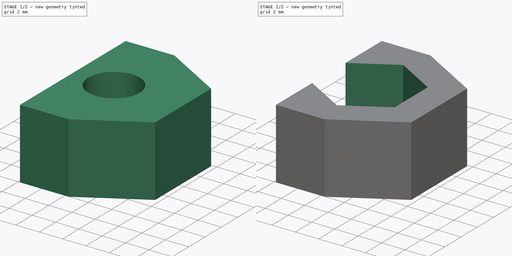
[diagram: build sequence overview — one tinted view per stage of 2, left to right]
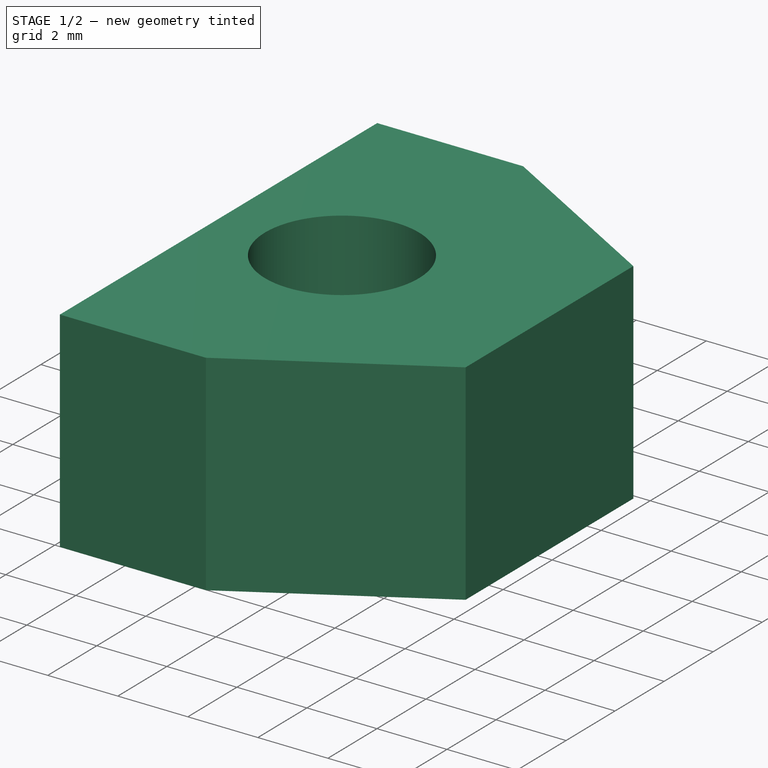
[diagram: stage 1 of 2 — iso view after this stage's code; geometry added in this stage tinted green]
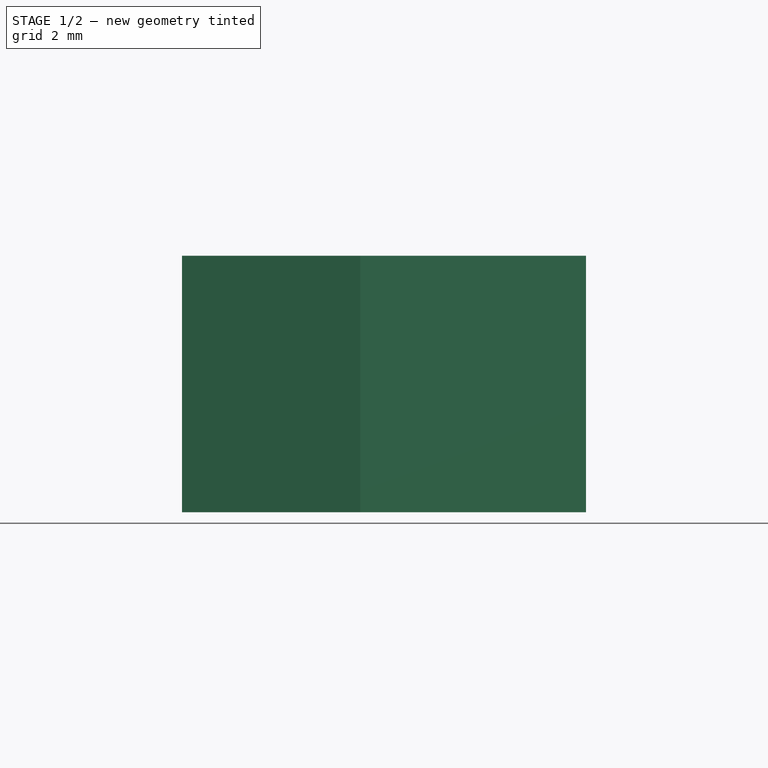
[diagram: stage 1 of 2 — front view after this stage's code; geometry added in this stage tinted green]
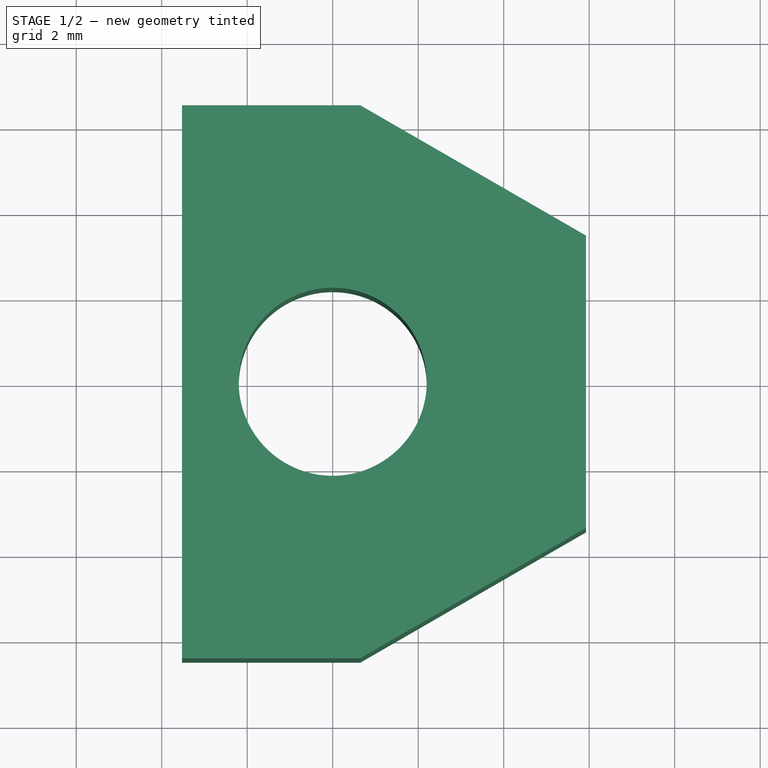
[diagram: stage 1 of 2 — top view after this stage's code; geometry added in this stage tinted green]
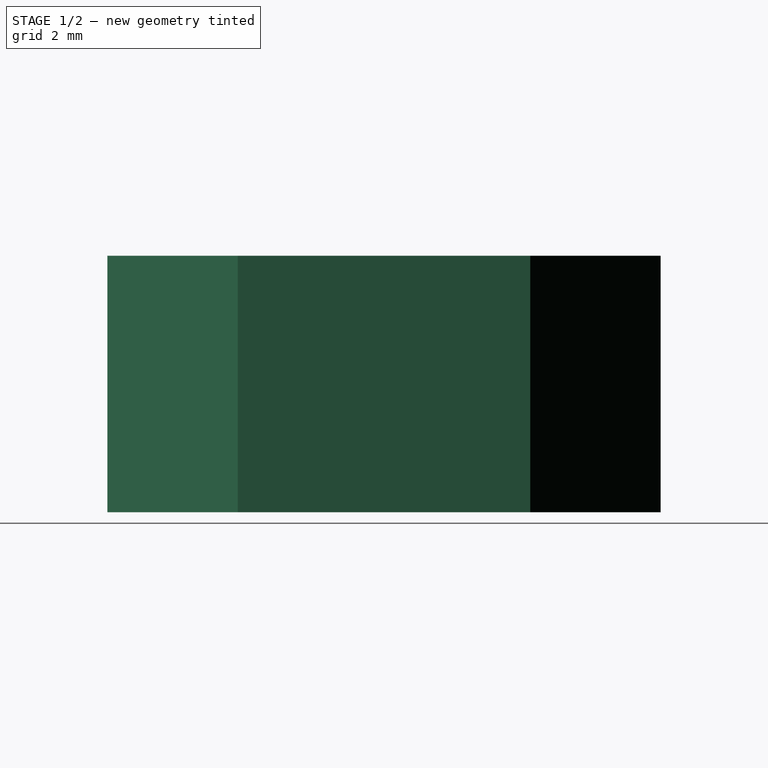
[diagram: stage 1 of 2 — right view after this stage's code; geometry added in this stage tinted green]
FCSTD DOCUMENT  (FreeCAD 0.15R4671 (Git))
Label: Halter Gleitlager Z - Verschraubung
License: All rights reserved
LicenseURL: http://de.wikipedia.org/wiki/Alle_Rechte_vorbehalten
objects: Sketcher::SketchObject×3, PartDesign::Pocket×2, PartDesign::Pad×1
note: 9 computed .brp shape members not serialized (recipe doc carries the construction recipe); baked Part::Feature solids carry a one-line shape summary decoded from their .brp

FEATURE [Sketcher::SketchObject] Sketch
  sketch-geometry (16):
    g0: LineSegment [constr] StartX=0 StartY=-4.07032 StartZ=0 EndX=3.525 EndY=-2.03516 EndZ=0
    g1: LineSegment [constr] StartX=3.525 StartY=-2.03516 StartZ=0 EndX=3.525 EndY=2.03516 EndZ=0
    g2: LineSegment [constr] StartX=3.525 StartY=2.03516 StartZ=0 EndX=0 EndY=4.07032 EndZ=0
    g3: LineSegment [constr] StartX=0 StartY=4.07032 StartZ=0 EndX=-3.525 EndY=2.03516 EndZ=0
    g4: LineSegment [constr] StartX=-3.525 StartY=2.03516 StartZ=0 EndX=-3.525 EndY=-2.03516 EndZ=0
    g5: LineSegment [constr] StartX=-3.525 StartY=-2.03516 StartZ=0 EndX=0 EndY=-4.07032 EndZ=0
    g6: Circle [constr] CenterX=0 CenterY=0 CenterZ=0 NormalX=0 NormalY=0 NormalZ=1 Radius=4.07032
    g7: LineSegment StartX=-3.525 StartY=6.47032 StartZ=0 EndX=-3.525 EndY=-6.47032 EndZ=0
    g8: LineSegment StartX=-3.525 StartY=-6.47032 StartZ=0 EndX=0.643078 EndY=-6.47032 EndZ=0
    g9: LineSegment StartX=0.643078 StartY=-6.47032 StartZ=0 EndX=5.925 EndY=-3.4208 EndZ=0
    g10: LineSegment StartX=5.925 StartY=-3.4208 StartZ=0 EndX=5.925 EndY=3.4208 EndZ=0
    g11: LineSegment StartX=5.925 StartY=3.4208 StartZ=0 EndX=0.643078 EndY=6.47032 EndZ=0
    g12: LineSegment StartX=0.643078 StartY=6.47032 StartZ=0 EndX=-3.525 EndY=6.47032 EndZ=0
    g13: LineSegment [constr] StartX=3.525 StartY=2.03516 StartZ=0 EndX=4.725 EndY=4.11362 EndZ=0
    g14: LineSegment [constr] StartX=3.525 StartY=2.03516 StartZ=0 EndX=5.925 EndY=2.03516 EndZ=0
    g15: LineSegment [constr] StartX=0 StartY=6.47032 StartZ=0 EndX=0 EndY=4.07032 EndZ=0
  constraints (42):
    c: Coincident(g0,g1)
    c: Coincident(g1,g2)
    c: Coincident(g2,g3)
    c: Coincident(g3,g4)
    c: Coincident(g4,g5)
    c: Coincident(g5,g0)
    c: Equal(g0, g1-g5) x5
    c: PointOnObject(g0,g6)
    c: PointOnObject(g1,g6)
    c: PointOnObject(g2,g6)
    c: PointOnObject(g3,g6)
    c: PointOnObject(g4,g6)
    c: PointOnObject(g5,g6)
    c: Vertical(g4)
    c: Distance(g0,g4) = 7.05
    c: Coincident(g-1,g6)
    c: Vertical(g7)
    c: Coincident(g7,g8)
    c: Horizontal(g8)
    c: Coincident(g8,g9)
    c: Coincident(g9,g10)
    c: Vertical(g10)
    c: Coincident(g10,g11)
    c: Coincident(g11,g12)
    c: Horizontal(g12)
    c: Coincident(g7,g12)
    c: Parallel(g2,g11)
    c: Parallel(g0,g9)
    c: Symmetric(g9,g10,g-1)
    c: Symmetric(g7,g7,g-1)
    c: Coincident(g13,g1)
    c: PointOnObject(g13,g11)
    c: Perpendicular(g13,g2)
    c: Coincident(g14,g1)
    c: PointOnObject(g14,g10)
    c: Horizontal(g14)
    c: Equal(g14,g13)
    c: DistanceX(g14) = 2.4
    c: Vertical(g15)
    c: Coincident(g15,g2)
    c: PointOnObject(g15,g12)
    c: PointOnObject(g3,g7)
FEATURE [PartDesign::Pad] Pad
  Length = 6
  Length2 = 100
  Sketch = -> Sketch
  Type = 0
FEATURE [Sketcher::SketchObject] Sketch001
  Placement = pos=(0,0,6) rot=(0,0,1;0rad)
  Support = -> Pad [Face8]
  sketch-geometry (1):
    g0: Circle CenterX=0 CenterY=0 CenterZ=0 NormalX=0 NormalY=0 NormalZ=1 Radius=2.2
  constraints (2):
    c: Coincident(g0,g-1)
    c: Radius(g0) = 2.2
FEATURE [PartDesign::Pocket] Pocket
  Length = 5
  Sketch = -> Sketch001
  Type = 1
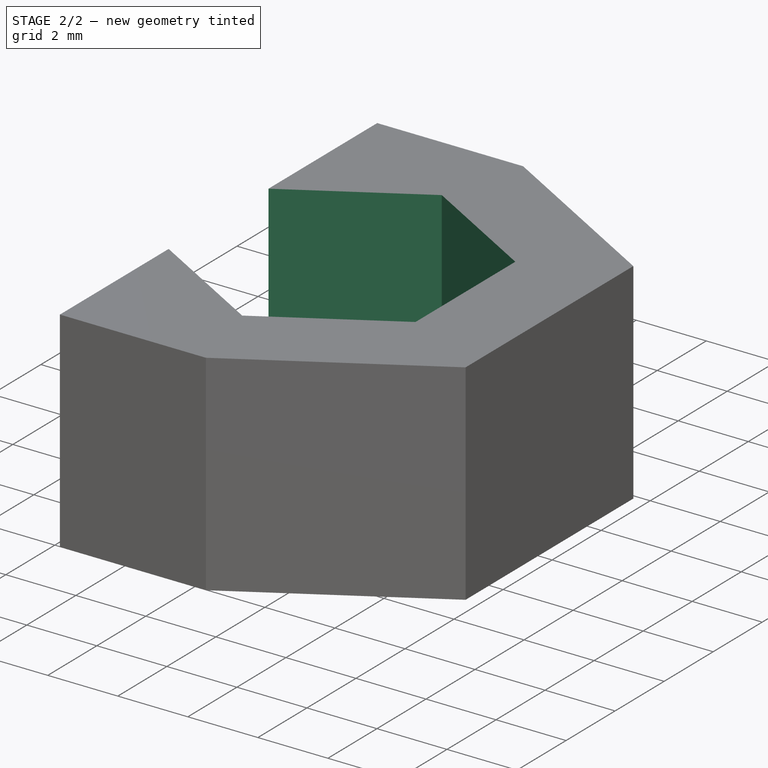
[diagram: stage 2 of 2 — iso view after this stage's code; geometry added in this stage tinted green]
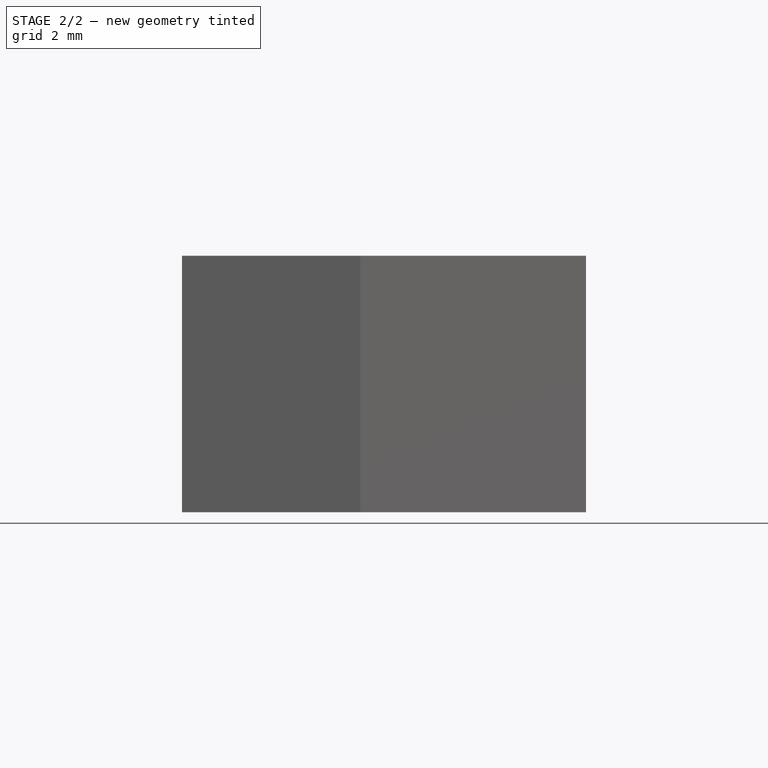
[diagram: stage 2 of 2 — front view after this stage's code; geometry added in this stage tinted green]
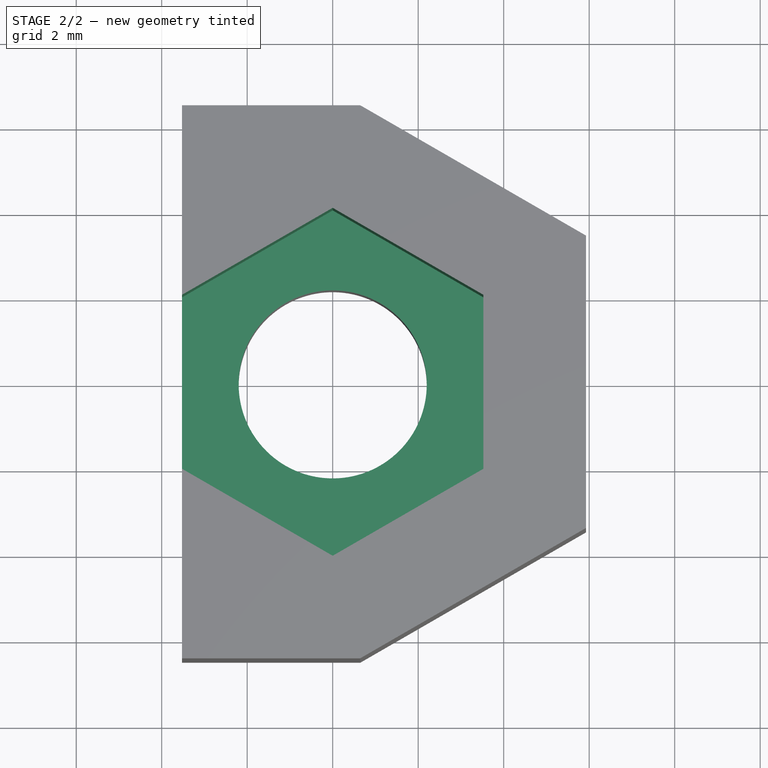
[diagram: stage 2 of 2 — top view after this stage's code; geometry added in this stage tinted green]
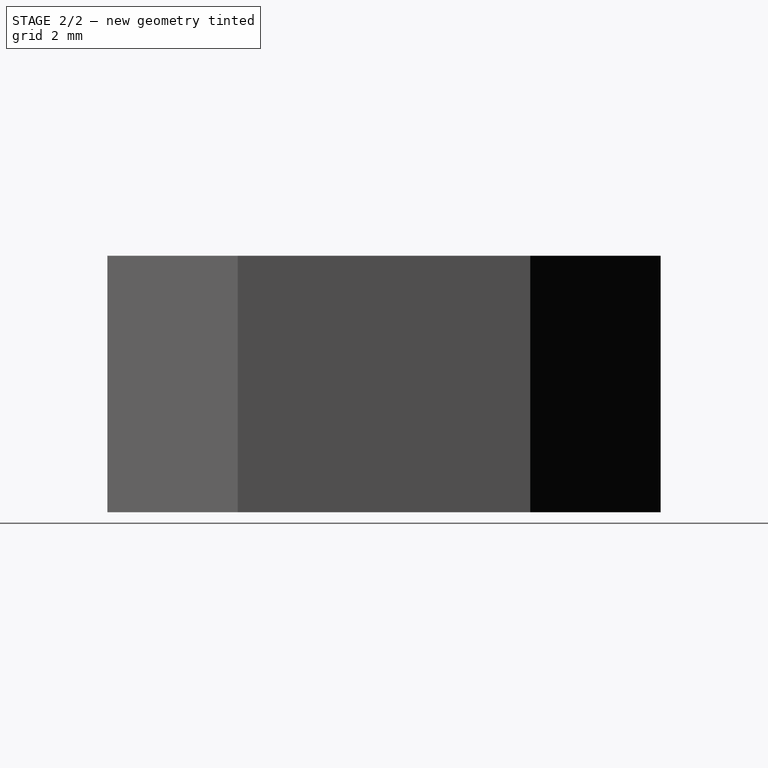
[diagram: stage 2 of 2 — right view after this stage's code; geometry added in this stage tinted green]
FEATURE [Sketcher::SketchObject] Sketch002
  Placement = pos=(0,0,6) rot=(0,0,1;0rad)
  Support = -> Pocket [Face5]
  sketch-geometry (7):
    g0: LineSegment StartX=0 StartY=-4.07032 StartZ=0 EndX=3.525 EndY=-2.03516 EndZ=0
    g1: LineSegment StartX=3.525 StartY=-2.03516 StartZ=0 EndX=3.525 EndY=2.03516 EndZ=0
    g2: LineSegment StartX=3.525 StartY=2.03516 StartZ=0 EndX=0 EndY=4.07032 EndZ=0
    g3: LineSegment StartX=0 StartY=4.07032 StartZ=0 EndX=-3.525 EndY=2.03516 EndZ=0
    g4: LineSegment StartX=-3.525 StartY=2.03516 StartZ=0 EndX=-3.525 EndY=-2.03516 EndZ=0
    g5: LineSegment StartX=-3.525 StartY=-2.03516 StartZ=0 EndX=0 EndY=-4.07032 EndZ=0
    g6: Circle [constr] CenterX=0 CenterY=0 CenterZ=0 NormalX=0 NormalY=0 NormalZ=1 Radius=4.07032
  constraints (16):
    c: Coincident(g0,g1)
    c: Coincident(g1,g2)
    c: Coincident(g2,g3)
    c: Coincident(g3,g4)
    c: Coincident(g4,g5)
    c: Coincident(g5,g0)
    c: Equal(g0, g1-g5) x5
    c: PointOnObject(g0,g6)
    c: PointOnObject(g1,g6)
    c: PointOnObject(g2,g6)
    c: PointOnObject(g3,g6)
    c: PointOnObject(g4,g6)
    c: PointOnObject(g5,g6)
    c: Vertical(g4)
    c: Distance(g4,g0) = 7.05
    c: Coincident(g6,g-1)
FEATURE [PartDesign::Pocket] Pocket001
  Length = 3.5
  Sketch = -> Sketch002
  Type = 0
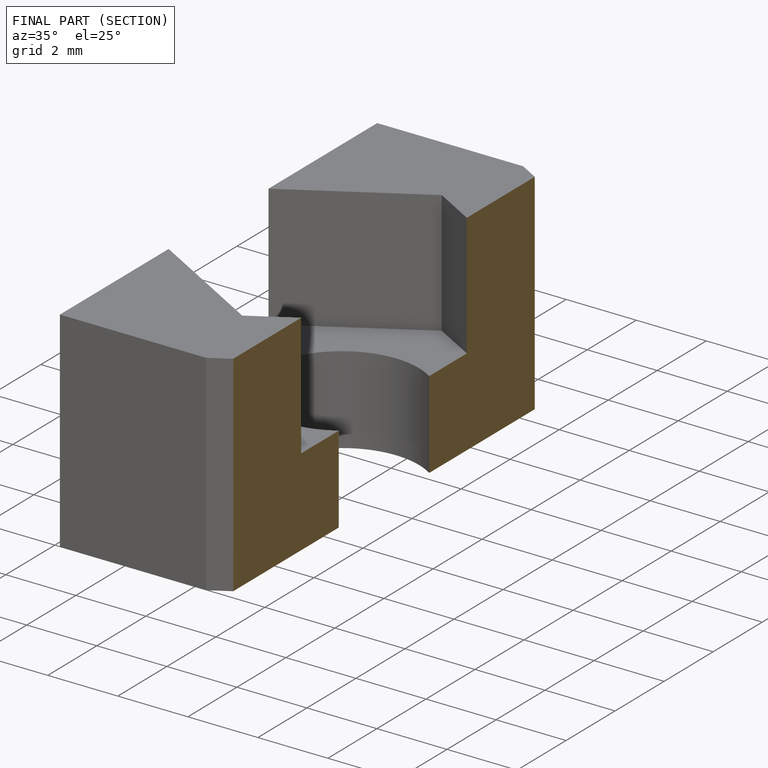
[diagram: finished part — half-section view (interior)]
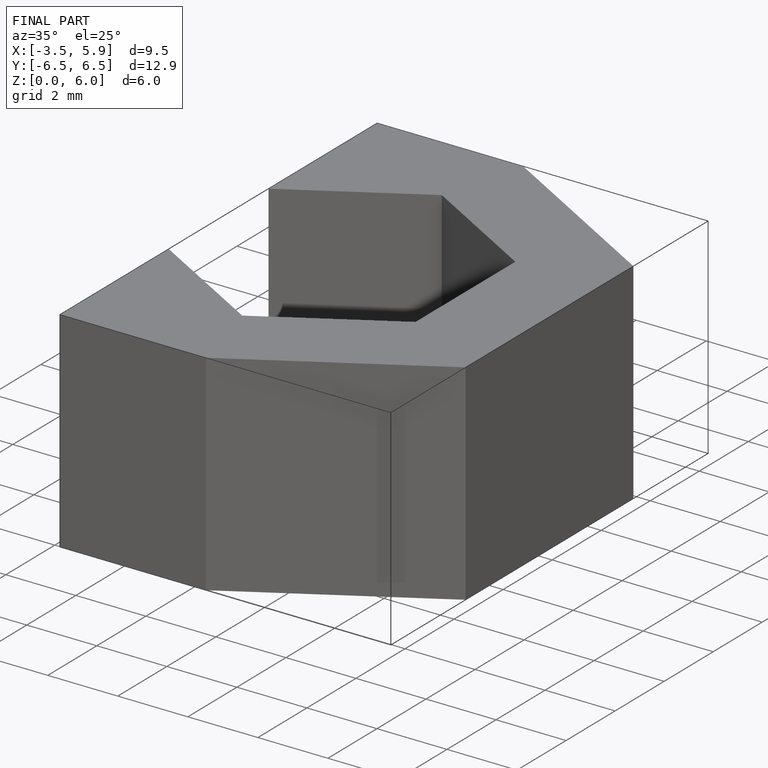
[diagram: finished part — iso view with bounding-box wireframe]
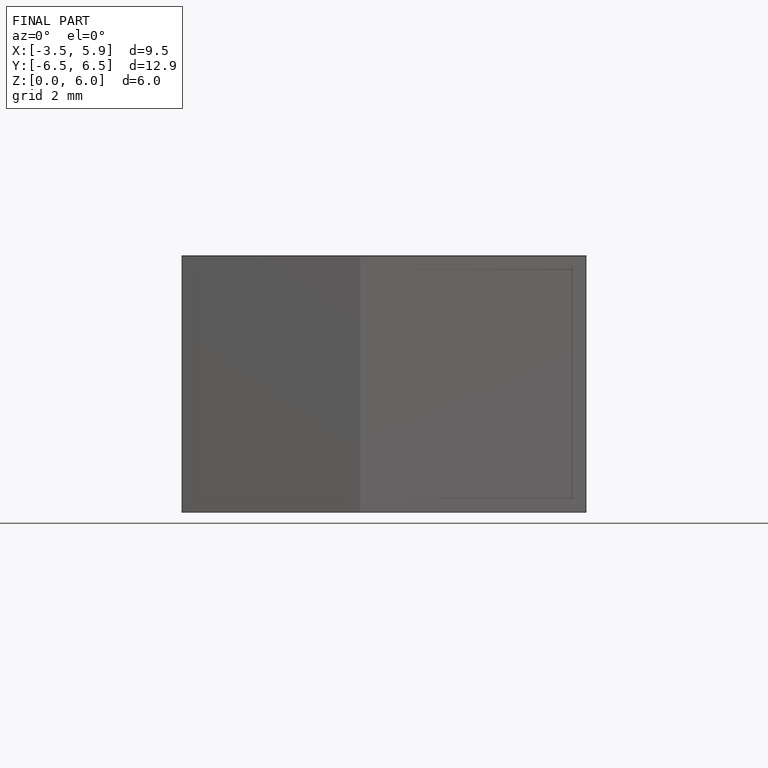
[diagram: finished part — front view with bounding-box wireframe]
